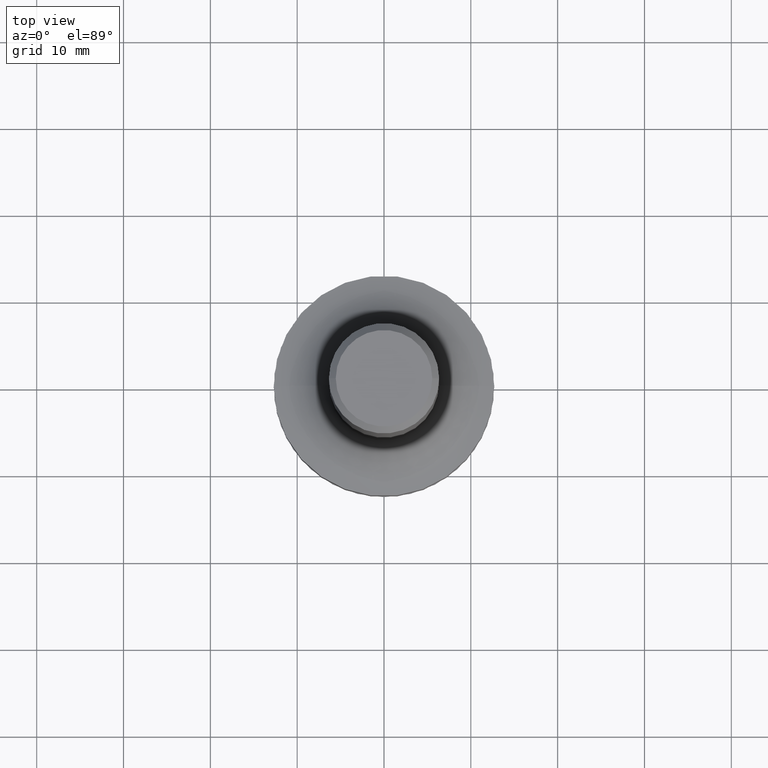
[diagram: clean part render]
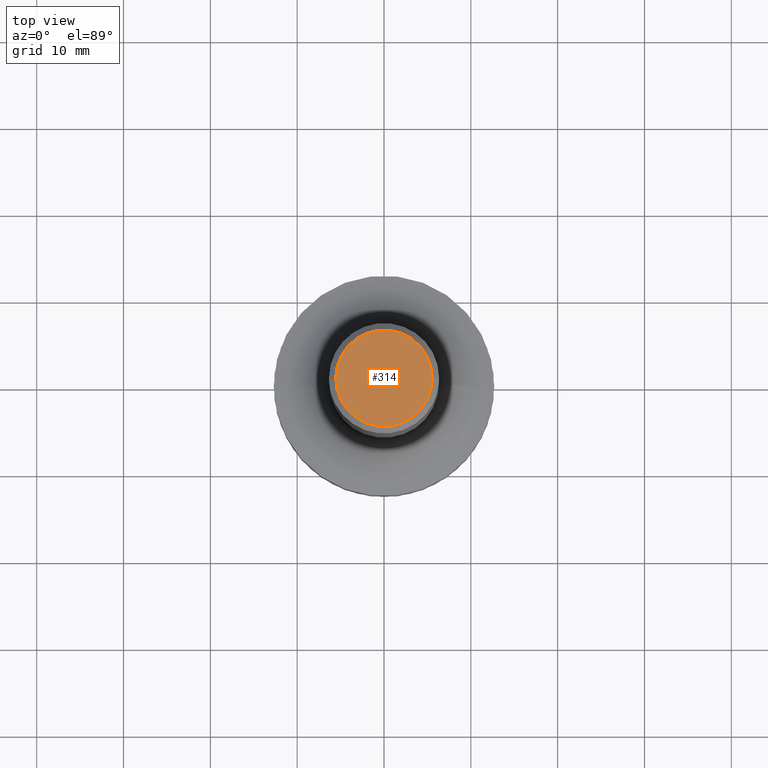
[diagram: same view with one face highlighted and labeled with its STEP entity id]
A machine part, top view. The second image highlights one B-rep face of the part: STEP entity #314.
In plain terms, the highlighted planar face has unit normal (0, -0, -1).
Its self-contained STEP definition (entity closure, byte-faithful):
#1 = DIRECTION ( 'NONE',  ( -2.445468806185136597E-29, 3.491481338843145583E-15, 1.000000000000000000 ) ) ;
#35 = DIRECTION ( 'NONE',  ( 1.000000000000000000, -6.982962677686266711E-15, 4.876319244907601817E-29 ) ) ;
#38 = DIRECTION ( 'NONE',  ( -2.445468806185136597E-29, 3.491481338843145583E-15, 1.000000000000000000 ) ) ;
#40 = AXIS2_PLACEMENT_3D ( 'NONE', #397, #38, #166 ) ;
#85 = DIRECTION ( 'NONE',  ( -1.000000000000000000, 6.982962677686265922E-15, -4.876176775795935793E-29 ) ) ;
#115 = VERTEX_POINT ( 'NONE', #129 ) ;
#127 = CARTESIAN_POINT ( 'NONE',  ( 0.2187999999999999945, -1.662567839563600480E-15, 7.654042494682104827E-18 ) ) ;
#129 = CARTESIAN_POINT ( 'NONE',  ( -0.2187999999999999945, 1.582339342763707436E-15, 7.654042494660075270E-18 ) ) ;
#166 = DIRECTION ( 'NONE',  ( 1.000000000000000000, -6.982962677686266711E-15, 4.876319244907601817E-29 ) ) ;
#171 = AXIS2_PLACEMENT_3D ( 'NONE', #321, #1, #35 ) ;
#197 = DIRECTION ( 'NONE',  ( 2.438088387897960049E-29, -3.491481338843145188E-15, -1.000000000000000000 ) ) ;
#213 = CIRCLE ( 'NONE', #40, 0.2187999999999999945 ) ;
#216 = EDGE_LOOP ( 'NONE', ( #426, #259 ) ) ;
#259 = ORIENTED_EDGE ( 'NONE', *, *, #353, .T. ) ;
#286 = CARTESIAN_POINT ( 'NONE',  ( 1.527872233877754946E-15, 0.2187999999999999945, -7.601090956915447608E-16 ) ) ;
#314 = ADVANCED_FACE ( 'NONE', ( #345 ), #358, .F. ) ;
#321 = CARTESIAN_POINT ( 'NONE',  ( -1.871772216193327269E-46, 2.672394653685605698E-32, 7.654042494670949841E-18 ) ) ;
#345 = FACE_OUTER_BOUND ( 'NONE', #216, .T. ) ;
#353 = EDGE_CURVE ( 'NONE', #387, #115, #380, .T. ) ;
#358 = PLANE ( 'NONE',  #371 ) ;
#371 = AXIS2_PLACEMENT_3D ( 'NONE', #286, #197, #85 ) ;
#380 = CIRCLE ( 'NONE', #171, 0.2187999999999999945 ) ;
#387 = VERTEX_POINT ( 'NONE', #127 ) ;
#390 = EDGE_CURVE ( 'NONE', #115, #387, #213, .T. ) ;
#397 = CARTESIAN_POINT ( 'NONE',  ( -1.871772216193327269E-46, 2.672394653685605698E-32, 7.654042494670949841E-18 ) ) ;
#426 = ORIENTED_EDGE ( 'NONE', *, *, #390, .T. ) ;